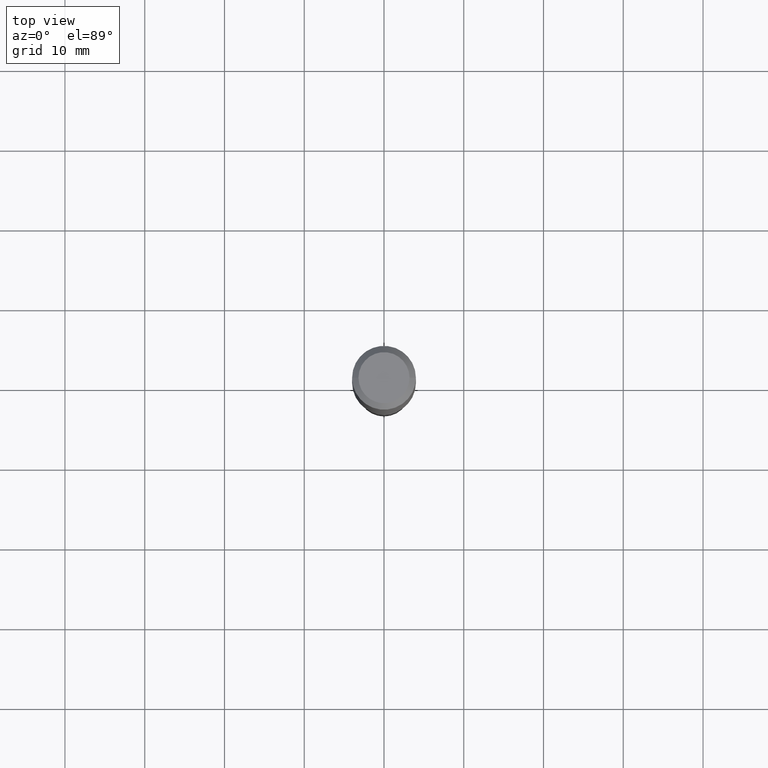
[diagram: clean part render]
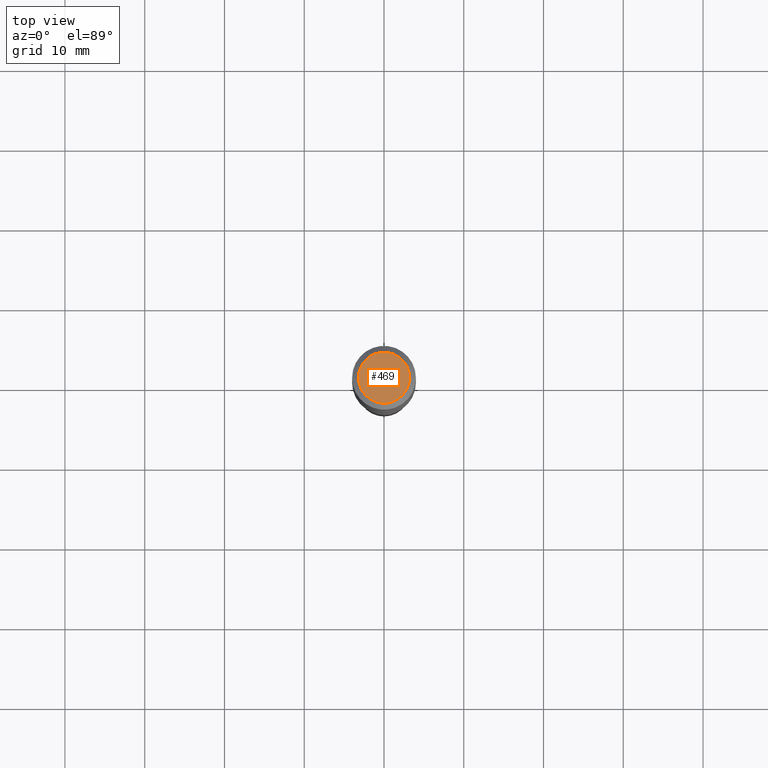
[diagram: same view with one face highlighted and labeled with its STEP entity id]
A machine part, top view. The second image highlights one B-rep face of the part: STEP entity #469.
In plain terms, the highlighted planar face has unit normal (0, -0, -1).
Its self-contained STEP definition (entity closure, byte-faithful):
#4 = DIRECTION ( 'NONE',  ( -2.445468806185136597E-29, 3.491481338843145583E-15, 1.000000000000000000 ) ) ;
#18 = DIRECTION ( 'NONE',  ( -1.000000000000000000, 6.982962677686265922E-15, -4.876176775795935793E-29 ) ) ;
#37 = AXIS2_PLACEMENT_3D ( 'NONE', #432, #459, #166 ) ;
#47 = DIRECTION ( 'NONE',  ( 1.000000000000000000, -6.982962677686265922E-15, 4.876281427513067258E-29 ) ) ;
#97 = CARTESIAN_POINT ( 'NONE',  ( 0.1260000000000000009, -1.027466422270894443E-15, 3.860086710919128072E-18 ) ) ;
#123 = CARTESIAN_POINT ( 'NONE',  ( -9.439721640706201686E-47, 1.347742071746726764E-32, 3.860086710912459732E-18 ) ) ;
#154 = VERTEX_POINT ( 'NONE', #97 ) ;
#166 = DIRECTION ( 'NONE',  ( 1.000000000000000000, -6.982962677686265922E-15, 4.876281427513067258E-29 ) ) ;
#171 = ORIENTED_EDGE ( 'NONE', *, *, #263, .T. ) ;
#220 = CARTESIAN_POINT ( 'NONE',  ( -0.1260000000000000009, 9.348441284752484904E-16, 3.860086710906114178E-18 ) ) ;
#256 = CARTESIAN_POINT ( 'NONE',  ( -4.719860820353100843E-47, 6.738710358733633822E-33, 1.930043355456229866E-18 ) ) ;
#259 = DIRECTION ( 'NONE',  ( 2.438088387897960049E-29, -3.491481338843145188E-15, -1.000000000000000000 ) ) ;
#263 = EDGE_CURVE ( 'NONE', #430, #154, #392, .T. ) ;
#316 = EDGE_LOOP ( 'NONE', ( #171, #346 ) ) ;
#334 = CIRCLE ( 'NONE', #352, 0.1260000000000000009 ) ;
#343 = AXIS2_PLACEMENT_3D ( 'NONE', #256, #259, #18 ) ;
#346 = ORIENTED_EDGE ( 'NONE', *, *, #394, .T. ) ;
#352 = AXIS2_PLACEMENT_3D ( 'NONE', #123, #4, #47 ) ;
#372 = PLANE ( 'NONE',  #343 ) ;
#392 = CIRCLE ( 'NONE', #37, 0.1260000000000000009 ) ;
#394 = EDGE_CURVE ( 'NONE', #154, #430, #334, .T. ) ;
#430 = VERTEX_POINT ( 'NONE', #220 ) ;
#432 = CARTESIAN_POINT ( 'NONE',  ( -9.439721640706201686E-47, 1.347742071746726764E-32, 3.860086710912459732E-18 ) ) ;
#459 = DIRECTION ( 'NONE',  ( -2.445468806185136597E-29, 3.491481338843145583E-15, 1.000000000000000000 ) ) ;
#469 = ADVANCED_FACE ( 'NONE', ( #480 ), #372, .F. ) ;
#480 = FACE_OUTER_BOUND ( 'NONE', #316, .T. ) ;